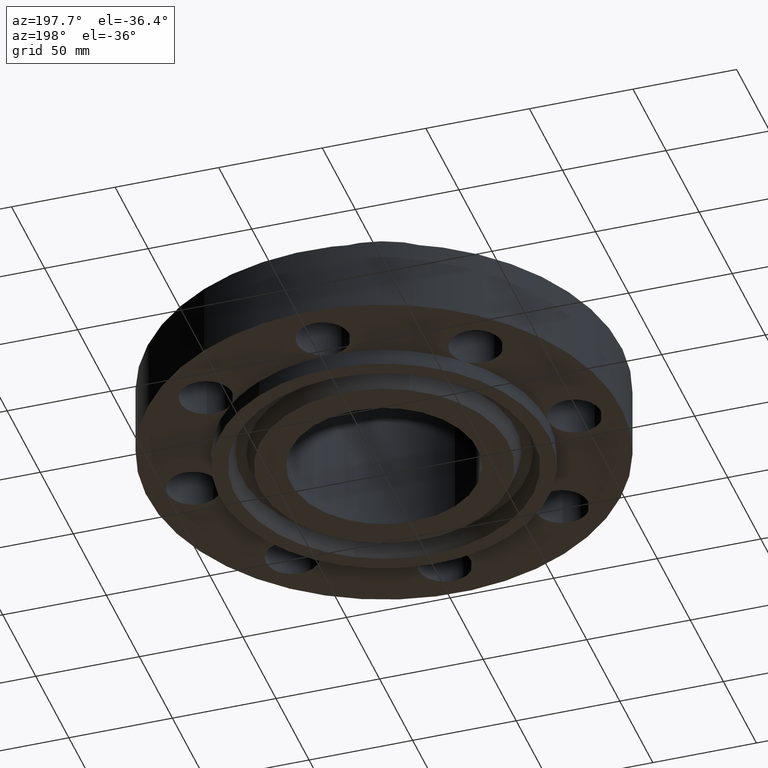
[diagram: clean part render]
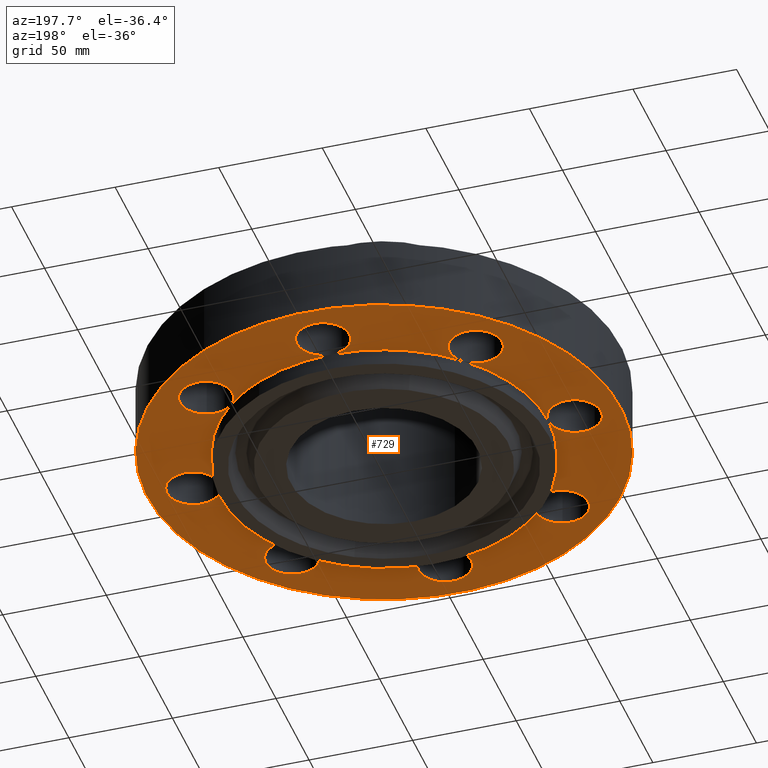
[diagram: same view with one face highlighted and labeled with its STEP entity id]
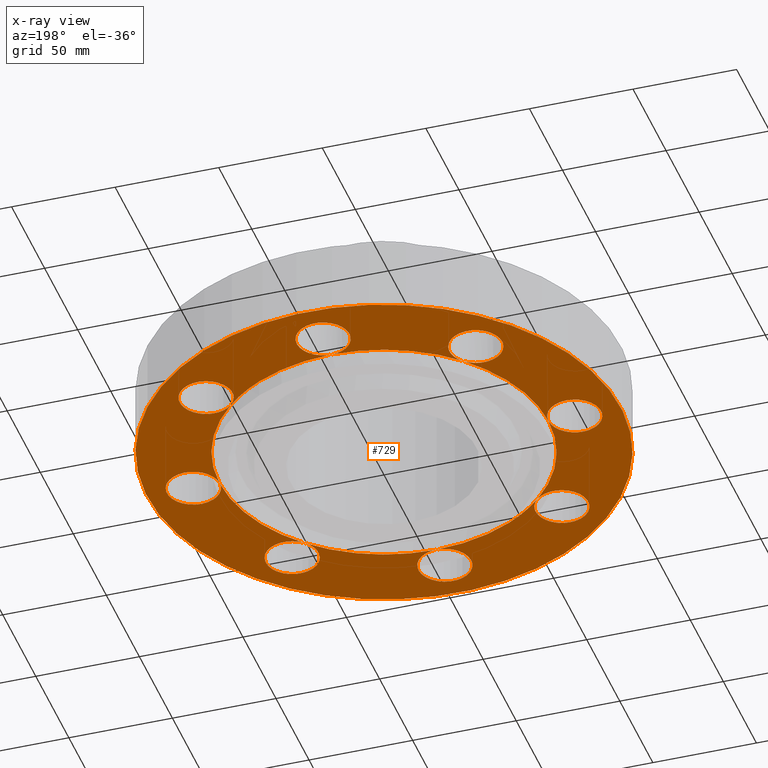
[diagram: x-ray of the same camera — body ghosted, the highlighted face saturated]
A machine part, auxiliary view. The second image highlights one B-rep face of the part: STEP entity #729.
The next image is the same camera in x-ray: the body ghosted, the highlighted face saturated — about 0% of this face is hidden behind the body in this view.
In plain terms, the highlighted planar face has unit normal (0, 0, -1).
Its self-contained STEP definition (entity closure, byte-faithful):
#51=AXIS2_PLACEMENT_3D('Circle Axis2P3D',#49,#50,$) ;
#77=AXIS2_PLACEMENT_3D('Circle Axis2P3D',#75,#76,$) ;
#84=AXIS2_PLACEMENT_3D('Circle Axis2P3D',#82,#83,$) ;
#107=AXIS2_PLACEMENT_3D('Circle Axis2P3D',#105,#106,$) ;
#142=AXIS2_PLACEMENT_3D('Circle Axis2P3D',#140,#141,$) ;
#455=AXIS2_PLACEMENT_3D('Circle Axis2P3D',#453,#454,$) ;
#462=AXIS2_PLACEMENT_3D('Circle Axis2P3D',#460,#461,$) ;
#469=AXIS2_PLACEMENT_3D('Circle Axis2P3D',#467,#468,$) ;
#476=AXIS2_PLACEMENT_3D('Circle Axis2P3D',#474,#475,$) ;
#481=AXIS2_PLACEMENT_3D('Circle Axis2P3D',#479,#480,$) ;
#509=AXIS2_PLACEMENT_3D('Circle Axis2P3D',#507,#508,$) ;
#516=AXIS2_PLACEMENT_3D('Circle Axis2P3D',#514,#515,$) ;
#523=AXIS2_PLACEMENT_3D('Circle Axis2P3D',#521,#522,$) ;
#530=AXIS2_PLACEMENT_3D('Circle Axis2P3D',#528,#529,$) ;
#537=AXIS2_PLACEMENT_3D('Circle Axis2P3D',#535,#536,$) ;
#554=AXIS2_PLACEMENT_3D('Plane Axis2P3D',#551,#552,#553) ;
#562=AXIS2_PLACEMENT_3D('Circle Axis2P3D',#560,#561,$) ;
#569=AXIS2_PLACEMENT_3D('Circle Axis2P3D',#567,#568,$) ;
#576=AXIS2_PLACEMENT_3D('Circle Axis2P3D',#574,#575,$) ;
#581=AXIS2_PLACEMENT_3D('Circle Axis2P3D',#579,#580,$) ;
#588=AXIS2_PLACEMENT_3D('Circle Axis2P3D',#586,#587,$) ;
#595=AXIS2_PLACEMENT_3D('Circle Axis2P3D',#593,#594,$) ;
#600=AXIS2_PLACEMENT_3D('Circle Axis2P3D',#598,#599,$) ;
#607=AXIS2_PLACEMENT_3D('Circle Axis2P3D',#605,#606,$) ;
#614=AXIS2_PLACEMENT_3D('Circle Axis2P3D',#612,#613,$) ;
#619=AXIS2_PLACEMENT_3D('Circle Axis2P3D',#617,#618,$) ;
#626=AXIS2_PLACEMENT_3D('Circle Axis2P3D',#624,#625,$) ;
#633=AXIS2_PLACEMENT_3D('Circle Axis2P3D',#631,#632,$) ;
#638=AXIS2_PLACEMENT_3D('Circle Axis2P3D',#636,#637,$) ;
#645=AXIS2_PLACEMENT_3D('Circle Axis2P3D',#643,#644,$) ;
#652=AXIS2_PLACEMENT_3D('Circle Axis2P3D',#650,#651,$) ;
#657=AXIS2_PLACEMENT_3D('Circle Axis2P3D',#655,#656,$) ;
#664=AXIS2_PLACEMENT_3D('Circle Axis2P3D',#662,#663,$) ;
#671=AXIS2_PLACEMENT_3D('Circle Axis2P3D',#669,#670,$) ;
#676=AXIS2_PLACEMENT_3D('Circle Axis2P3D',#674,#675,$) ;
#683=AXIS2_PLACEMENT_3D('Circle Axis2P3D',#681,#682,$) ;
#690=AXIS2_PLACEMENT_3D('Circle Axis2P3D',#688,#689,$) ;
#44=CARTESIAN_POINT('Vertex',(-0.438791280947,3.86471276932,0.)) ;
#49=CARTESIAN_POINT('Axis2P3D Location',(0.,3.62500000001,0.)) ;
#53=CARTESIAN_POINT('Vertex',(0.438791280947,3.38528723071,0.)) ;
#75=CARTESIAN_POINT('Axis2P3D Location',(0.,3.62500000001,0.)) ;
#79=CARTESIAN_POINT('Vertex',(-1.33945743657E-015,3.12500000001,2.79741234551E-016)) ;
#82=CARTESIAN_POINT('Axis2P3D Location',(0.,3.62500000001,0.)) ;
#105=CARTESIAN_POINT('Axis2P3D Location',(0.,0.,2.79741234551E-016)) ;
#109=CARTESIAN_POINT('Vertex',(-2.15741492373,-3.94912152852,2.79741234551E-016)) ;
#111=CARTESIAN_POINT('Vertex',(2.15741492373,3.94912152852,2.79741234551E-016)) ;
#140=CARTESIAN_POINT('Axis2P3D Location',(0.,0.,2.79741234551E-016)) ;
#450=CARTESIAN_POINT('Vertex',(-1.49820480814,-2.74244550592,2.79741234551E-016)) ;
#453=CARTESIAN_POINT('Axis2P3D Location',(0.,0.,2.79741234551E-016)) ;
#457=CARTESIAN_POINT('Vertex',(-2.20970869122,-2.20970869122,0.)) ;
#460=CARTESIAN_POINT('Axis2P3D Location',(0.,0.,2.79741234551E-016)) ;
#464=CARTESIAN_POINT('Vertex',(-3.12500000001,-1.67844740731E-015,0.)) ;
#467=CARTESIAN_POINT('Axis2P3D Location',(0.,0.,2.79741234551E-016)) ;
#471=CARTESIAN_POINT('Vertex',(-2.20970869122,2.20970869122,0.)) ;
#474=CARTESIAN_POINT('Axis2P3D Location',(0.,0.,2.79741234551E-016)) ;
#479=CARTESIAN_POINT('Axis2P3D Location',(0.,0.,2.79741234551E-016)) ;
#483=CARTESIAN_POINT('Vertex',(1.49820480814,2.74244550592,2.79741234551E-016)) ;
#507=CARTESIAN_POINT('Axis2P3D Location',(0.,0.,2.79741234551E-016)) ;
#511=CARTESIAN_POINT('Vertex',(2.20970869122,2.20970869122,0.)) ;
#514=CARTESIAN_POINT('Axis2P3D Location',(0.,0.,2.79741234551E-016)) ;
#518=CARTESIAN_POINT('Vertex',(3.12500000001,0.,0.)) ;
#521=CARTESIAN_POINT('Axis2P3D Location',(0.,0.,2.79741234551E-016)) ;
#525=CARTESIAN_POINT('Vertex',(2.20970869122,-2.20970869122,0.)) ;
#528=CARTESIAN_POINT('Axis2P3D Location',(0.,0.,2.79741234551E-016)) ;
#532=CARTESIAN_POINT('Vertex',(8.29897616581E-017,-3.12500000001,0.)) ;
#535=CARTESIAN_POINT('Axis2P3D Location',(0.,0.,2.79741234551E-016)) ;
#551=CARTESIAN_POINT('Axis2P3D Location',(0.,3.12500000001,0.)) ;
#560=CARTESIAN_POINT('Axis2P3D Location',(3.62500000001,0.,0.)) ;
#564=CARTESIAN_POINT('Vertex',(3.38528723071,-0.438791280947,0.)) ;
#567=CARTESIAN_POINT('Axis2P3D Location',(3.62500000001,5.59482469102E-016,0.)) ;
#571=CARTESIAN_POINT('Vertex',(3.86471276932,0.438791280947,0.)) ;
#574=CARTESIAN_POINT('Axis2P3D Location',(3.62500000001,0.,0.)) ;
#579=CARTESIAN_POINT('Axis2P3D Location',(2.56326208181,2.56326208181,0.)) ;
#583=CARTESIAN_POINT('Vertex',(2.70403184738,2.08348726682,0.)) ;
#586=CARTESIAN_POINT('Axis2P3D Location',(2.56326208181,2.56326208181,0.)) ;
#590=CARTESIAN_POINT('Vertex',(2.42249231624,3.04303689681,0.)) ;
#593=CARTESIAN_POINT('Axis2P3D Location',(2.56326208181,2.56326208181,0.)) ;
#598=CARTESIAN_POINT('Axis2P3D Location',(-2.56326208181,2.56326208181,0.)) ;
#602=CARTESIAN_POINT('Vertex',(-2.08348726682,2.70403184738,0.)) ;
#605=CARTESIAN_POINT('Axis2P3D Location',(-2.56326208181,2.56326208181,0.)) ;
#609=CARTESIAN_POINT('Vertex',(-3.04303689681,2.42249231624,0.)) ;
#612=CARTESIAN_POINT('Axis2P3D Location',(-2.56326208181,2.56326208181,0.)) ;
#617=CARTESIAN_POINT('Axis2P3D Location',(-3.62500000001,-1.67844740731E-015,0.)) ;
#621=CARTESIAN_POINT('Vertex',(-3.38528723071,0.438791280947,0.)) ;
#624=CARTESIAN_POINT('Axis2P3D Location',(-3.62500000001,-1.1189649382E-015,0.)) ;
#628=CARTESIAN_POINT('Vertex',(-3.86471276932,-0.438791280947,0.)) ;
#631=CARTESIAN_POINT('Axis2P3D Location',(-3.62500000001,-1.67844740731E-015,0.)) ;
#636=CARTESIAN_POINT('Axis2P3D Location',(-2.56326208181,-2.56326208181,0.)) ;
#640=CARTESIAN_POINT('Vertex',(-2.70403184738,-2.08348726682,0.)) ;
#643=CARTESIAN_POINT('Axis2P3D Location',(-2.56326208181,-2.56326208181,0.)) ;
#647=CARTESIAN_POINT('Vertex',(-2.42249231624,-3.04303689681,0.)) ;
#650=CARTESIAN_POINT('Axis2P3D Location',(-2.56326208181,-2.56326208181,0.)) ;
#655=CARTESIAN_POINT('Axis2P3D Location',(1.74838271595E-016,-3.62500000001,0.)) ;
#659=CARTESIAN_POINT('Vertex',(-0.438791280947,-3.38528723071,0.)) ;
#662=CARTESIAN_POINT('Axis2P3D Location',(2.79741234551E-016,-3.62500000001,0.)) ;
#666=CARTESIAN_POINT('Vertex',(0.438791280947,-3.86471276932,0.)) ;
#669=CARTESIAN_POINT('Axis2P3D Location',(1.74838271595E-016,-3.62500000001,0.)) ;
#674=CARTESIAN_POINT('Axis2P3D Location',(2.56326208181,-2.56326208181,0.)) ;
#678=CARTESIAN_POINT('Vertex',(2.08348726682,-2.70403184738,0.)) ;
#681=CARTESIAN_POINT('Axis2P3D Location',(2.56326208181,-2.56326208181,0.)) ;
#685=CARTESIAN_POINT('Vertex',(3.04303689681,-2.42249231624,0.)) ;
#688=CARTESIAN_POINT('Axis2P3D Location',(2.56326208181,-2.56326208181,0.)) ;
#50=DIRECTION('Axis2P3D Direction',(0.,-0.,-0.0393700787402)) ;
#76=DIRECTION('Axis2P3D Direction',(0.,-0.,-0.0393700787402)) ;
#83=DIRECTION('Axis2P3D Direction',(0.,-0.,-0.0393700787402)) ;
#106=DIRECTION('Axis2P3D Direction',(0.,0.,-0.0393700787402)) ;
#141=DIRECTION('Axis2P3D Direction',(0.,0.,-0.0393700787402)) ;
#454=DIRECTION('Axis2P3D Direction',(0.,0.,-0.0393700787402)) ;
#461=DIRECTION('Axis2P3D Direction',(0.,0.,-0.0393700787402)) ;
#468=DIRECTION('Axis2P3D Direction',(0.,0.,-0.0393700787402)) ;
#475=DIRECTION('Axis2P3D Direction',(0.,0.,-0.0393700787402)) ;
#480=DIRECTION('Axis2P3D Direction',(0.,0.,-0.0393700787402)) ;
#508=DIRECTION('Axis2P3D Direction',(0.,0.,-0.0393700787402)) ;
#515=DIRECTION('Axis2P3D Direction',(0.,0.,-0.0393700787402)) ;
#522=DIRECTION('Axis2P3D Direction',(0.,0.,-0.0393700787402)) ;
#529=DIRECTION('Axis2P3D Direction',(0.,0.,-0.0393700787402)) ;
#536=DIRECTION('Axis2P3D Direction',(0.,0.,-0.0393700787402)) ;
#552=DIRECTION('Axis2P3D Direction',(0.,0.,-0.0393700787402)) ;
#553=DIRECTION('Axis2P3D XDirection',(0.0393700787402,0.,0.)) ;
#561=DIRECTION('Axis2P3D Direction',(0.,0.,-0.0393700787402)) ;
#568=DIRECTION('Axis2P3D Direction',(0.,0.,-0.0393700787402)) ;
#575=DIRECTION('Axis2P3D Direction',(0.,0.,-0.0393700787402)) ;
#580=DIRECTION('Axis2P3D Direction',(0.,0.,-0.0393700787402)) ;
#587=DIRECTION('Axis2P3D Direction',(0.,0.,-0.0393700787402)) ;
#594=DIRECTION('Axis2P3D Direction',(0.,0.,-0.0393700787402)) ;
#599=DIRECTION('Axis2P3D Direction',(0.,0.,-0.0393700787402)) ;
#606=DIRECTION('Axis2P3D Direction',(0.,0.,-0.0393700787402)) ;
#613=DIRECTION('Axis2P3D Direction',(0.,0.,-0.0393700787402)) ;
#618=DIRECTION('Axis2P3D Direction',(0.,0.,-0.0393700787402)) ;
#625=DIRECTION('Axis2P3D Direction',(0.,0.,-0.0393700787402)) ;
#632=DIRECTION('Axis2P3D Direction',(0.,0.,-0.0393700787402)) ;
#637=DIRECTION('Axis2P3D Direction',(0.,0.,-0.0393700787402)) ;
#644=DIRECTION('Axis2P3D Direction',(0.,0.,-0.0393700787402)) ;
#651=DIRECTION('Axis2P3D Direction',(0.,0.,-0.0393700787402)) ;
#656=DIRECTION('Axis2P3D Direction',(0.,0.,-0.0393700787402)) ;
#663=DIRECTION('Axis2P3D Direction',(0.,0.,-0.0393700787402)) ;
#670=DIRECTION('Axis2P3D Direction',(0.,0.,-0.0393700787402)) ;
#675=DIRECTION('Axis2P3D Direction',(0.,0.,-0.0393700787402)) ;
#682=DIRECTION('Axis2P3D Direction',(0.,0.,-0.0393700787402)) ;
#689=DIRECTION('Axis2P3D Direction',(0.,0.,-0.0393700787402)) ;
#557=ORIENTED_EDGE('',*,*,#113,.T.) ;
#558=ORIENTED_EDGE('',*,*,#144,.T.) ;
#694=ORIENTED_EDGE('',*,*,#566,.F.) ;
#695=ORIENTED_EDGE('',*,*,#573,.F.) ;
#696=ORIENTED_EDGE('',*,*,#578,.F.) ;
#697=ORIENTED_EDGE('',*,*,#520,.F.) ;
#698=ORIENTED_EDGE('',*,*,#585,.F.) ;
#699=ORIENTED_EDGE('',*,*,#592,.F.) ;
#700=ORIENTED_EDGE('',*,*,#597,.F.) ;
#701=ORIENTED_EDGE('',*,*,#513,.F.) ;
#702=ORIENTED_EDGE('',*,*,#485,.F.) ;
#703=ORIENTED_EDGE('',*,*,#81,.F.) ;
#704=ORIENTED_EDGE('',*,*,#55,.F.) ;
#705=ORIENTED_EDGE('',*,*,#86,.F.) ;
#706=ORIENTED_EDGE('',*,*,#478,.F.) ;
#707=ORIENTED_EDGE('',*,*,#604,.F.) ;
#708=ORIENTED_EDGE('',*,*,#611,.F.) ;
#709=ORIENTED_EDGE('',*,*,#616,.F.) ;
#710=ORIENTED_EDGE('',*,*,#473,.F.) ;
#711=ORIENTED_EDGE('',*,*,#623,.F.) ;
#712=ORIENTED_EDGE('',*,*,#630,.F.) ;
#713=ORIENTED_EDGE('',*,*,#635,.F.) ;
#714=ORIENTED_EDGE('',*,*,#466,.F.) ;
#715=ORIENTED_EDGE('',*,*,#642,.F.) ;
#716=ORIENTED_EDGE('',*,*,#649,.F.) ;
#717=ORIENTED_EDGE('',*,*,#654,.F.) ;
#718=ORIENTED_EDGE('',*,*,#459,.F.) ;
#719=ORIENTED_EDGE('',*,*,#539,.F.) ;
#720=ORIENTED_EDGE('',*,*,#661,.F.) ;
#721=ORIENTED_EDGE('',*,*,#668,.F.) ;
#722=ORIENTED_EDGE('',*,*,#673,.F.) ;
#723=ORIENTED_EDGE('',*,*,#534,.F.) ;
#724=ORIENTED_EDGE('',*,*,#680,.F.) ;
#725=ORIENTED_EDGE('',*,*,#687,.F.) ;
#726=ORIENTED_EDGE('',*,*,#692,.F.) ;
#727=ORIENTED_EDGE('',*,*,#527,.F.) ;
#728=FACE_BOUND('',#693,.T.) ;
#729=ADVANCED_FACE('PartBody',(#559,#728),#555,.T.) ;
#52=CIRCLE('generated circle',#51,0.500000000002) ;
#78=CIRCLE('generated circle',#77,0.500000000002) ;
#85=CIRCLE('generated circle',#84,0.500000000002) ;
#108=CIRCLE('generated circle',#107,4.50000000002) ;
#143=CIRCLE('generated circle',#142,4.50000000002) ;
#456=CIRCLE('generated circle',#455,3.12500000001) ;
#463=CIRCLE('generated circle',#462,3.12500000001) ;
#470=CIRCLE('generated circle',#469,3.12500000001) ;
#477=CIRCLE('generated circle',#476,3.12500000001) ;
#482=CIRCLE('generated circle',#481,3.12500000001) ;
#510=CIRCLE('generated circle',#509,3.12500000001) ;
#517=CIRCLE('generated circle',#516,3.12500000001) ;
#524=CIRCLE('generated circle',#523,3.12500000001) ;
#531=CIRCLE('generated circle',#530,3.12500000001) ;
#538=CIRCLE('generated circle',#537,3.12500000001) ;
#563=CIRCLE('generated circle',#562,0.500000000002) ;
#570=CIRCLE('generated circle',#569,0.500000000002) ;
#577=CIRCLE('generated circle',#576,0.500000000002) ;
#582=CIRCLE('generated circle',#581,0.500000000002) ;
#589=CIRCLE('generated circle',#588,0.500000000002) ;
#596=CIRCLE('generated circle',#595,0.500000000002) ;
#601=CIRCLE('generated circle',#600,0.500000000002) ;
#608=CIRCLE('generated circle',#607,0.500000000002) ;
#615=CIRCLE('generated circle',#614,0.500000000002) ;
#620=CIRCLE('generated circle',#619,0.500000000002) ;
#627=CIRCLE('generated circle',#626,0.500000000002) ;
#634=CIRCLE('generated circle',#633,0.500000000002) ;
#639=CIRCLE('generated circle',#638,0.500000000002) ;
#646=CIRCLE('generated circle',#645,0.500000000002) ;
#653=CIRCLE('generated circle',#652,0.500000000002) ;
#658=CIRCLE('generated circle',#657,0.500000000002) ;
#665=CIRCLE('generated circle',#664,0.500000000002) ;
#672=CIRCLE('generated circle',#671,0.500000000002) ;
#677=CIRCLE('generated circle',#676,0.500000000002) ;
#684=CIRCLE('generated circle',#683,0.500000000002) ;
#691=CIRCLE('generated circle',#690,0.500000000002) ;
#55=EDGE_CURVE('',#45,#54,#52,.T.) ;
#81=EDGE_CURVE('',#54,#80,#78,.T.) ;
#86=EDGE_CURVE('',#80,#45,#85,.T.) ;
#113=EDGE_CURVE('',#110,#112,#108,.T.) ;
#144=EDGE_CURVE('',#112,#110,#143,.T.) ;
#459=EDGE_CURVE('',#451,#458,#456,.T.) ;
#466=EDGE_CURVE('',#458,#465,#463,.T.) ;
#473=EDGE_CURVE('',#465,#472,#470,.T.) ;
#478=EDGE_CURVE('',#472,#80,#477,.T.) ;
#485=EDGE_CURVE('',#80,#484,#482,.T.) ;
#513=EDGE_CURVE('',#484,#512,#510,.T.) ;
#520=EDGE_CURVE('',#512,#519,#517,.T.) ;
#527=EDGE_CURVE('',#519,#526,#524,.T.) ;
#534=EDGE_CURVE('',#526,#533,#531,.T.) ;
#539=EDGE_CURVE('',#533,#451,#538,.T.) ;
#566=EDGE_CURVE('',#565,#519,#563,.T.) ;
#573=EDGE_CURVE('',#572,#565,#570,.T.) ;
#578=EDGE_CURVE('',#519,#572,#577,.T.) ;
#585=EDGE_CURVE('',#584,#512,#582,.T.) ;
#592=EDGE_CURVE('',#591,#584,#589,.T.) ;
#597=EDGE_CURVE('',#512,#591,#596,.T.) ;
#604=EDGE_CURVE('',#603,#472,#601,.T.) ;
#611=EDGE_CURVE('',#610,#603,#608,.T.) ;
#616=EDGE_CURVE('',#472,#610,#615,.T.) ;
#623=EDGE_CURVE('',#622,#465,#620,.T.) ;
#630=EDGE_CURVE('',#629,#622,#627,.T.) ;
#635=EDGE_CURVE('',#465,#629,#634,.T.) ;
#642=EDGE_CURVE('',#641,#458,#639,.T.) ;
#649=EDGE_CURVE('',#648,#641,#646,.T.) ;
#654=EDGE_CURVE('',#458,#648,#653,.T.) ;
#661=EDGE_CURVE('',#660,#533,#658,.T.) ;
#668=EDGE_CURVE('',#667,#660,#665,.T.) ;
#673=EDGE_CURVE('',#533,#667,#672,.T.) ;
#680=EDGE_CURVE('',#679,#526,#677,.T.) ;
#687=EDGE_CURVE('',#686,#679,#684,.T.) ;
#692=EDGE_CURVE('',#526,#686,#691,.T.) ;
#556=EDGE_LOOP('',(#557,#558)) ;
#693=EDGE_LOOP('',(#694,#695,#696,#697,#698,#699,#700,#701,#702,#703,#704,#705,#706,#707,#708,#709,#710,#711,#712,#713,#714,#715,#716,#717,#718,#719,#720,#721,#722,#723,#724,#725,#726,#727)) ;
#559=FACE_OUTER_BOUND('',#556,.T.) ;
#555=PLANE('',#554) ;
#45=VERTEX_POINT('',#44) ;
#54=VERTEX_POINT('',#53) ;
#80=VERTEX_POINT('',#79) ;
#110=VERTEX_POINT('',#109) ;
#112=VERTEX_POINT('',#111) ;
#451=VERTEX_POINT('',#450) ;
#458=VERTEX_POINT('',#457) ;
#465=VERTEX_POINT('',#464) ;
#472=VERTEX_POINT('',#471) ;
#484=VERTEX_POINT('',#483) ;
#512=VERTEX_POINT('',#511) ;
#519=VERTEX_POINT('',#518) ;
#526=VERTEX_POINT('',#525) ;
#533=VERTEX_POINT('',#532) ;
#565=VERTEX_POINT('',#564) ;
#572=VERTEX_POINT('',#571) ;
#584=VERTEX_POINT('',#583) ;
#591=VERTEX_POINT('',#590) ;
#603=VERTEX_POINT('',#602) ;
#610=VERTEX_POINT('',#609) ;
#622=VERTEX_POINT('',#621) ;
#629=VERTEX_POINT('',#628) ;
#641=VERTEX_POINT('',#640) ;
#648=VERTEX_POINT('',#647) ;
#660=VERTEX_POINT('',#659) ;
#667=VERTEX_POINT('',#666) ;
#679=VERTEX_POINT('',#678) ;
#686=VERTEX_POINT('',#685) ;